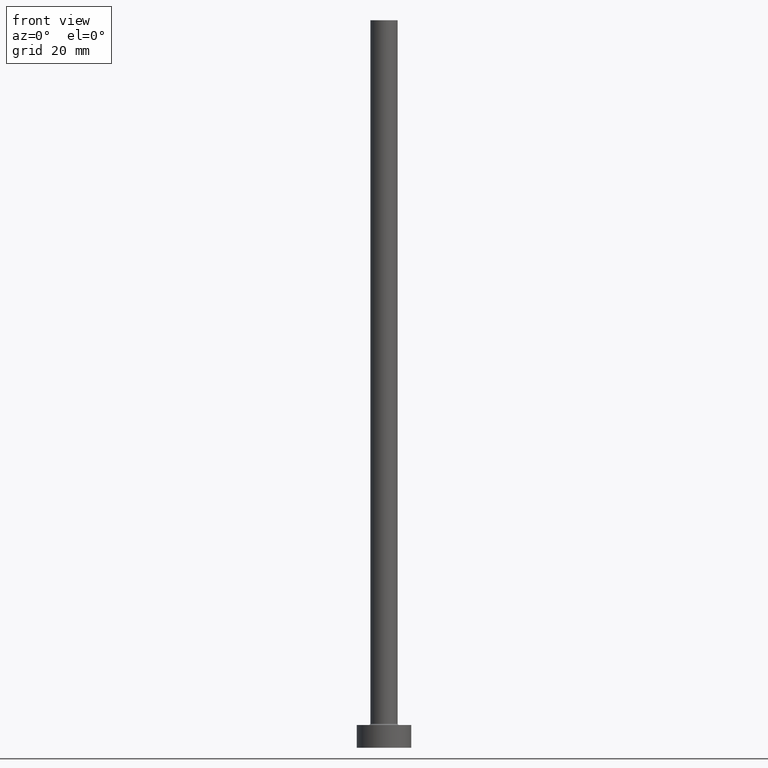
[diagram: clean part render]
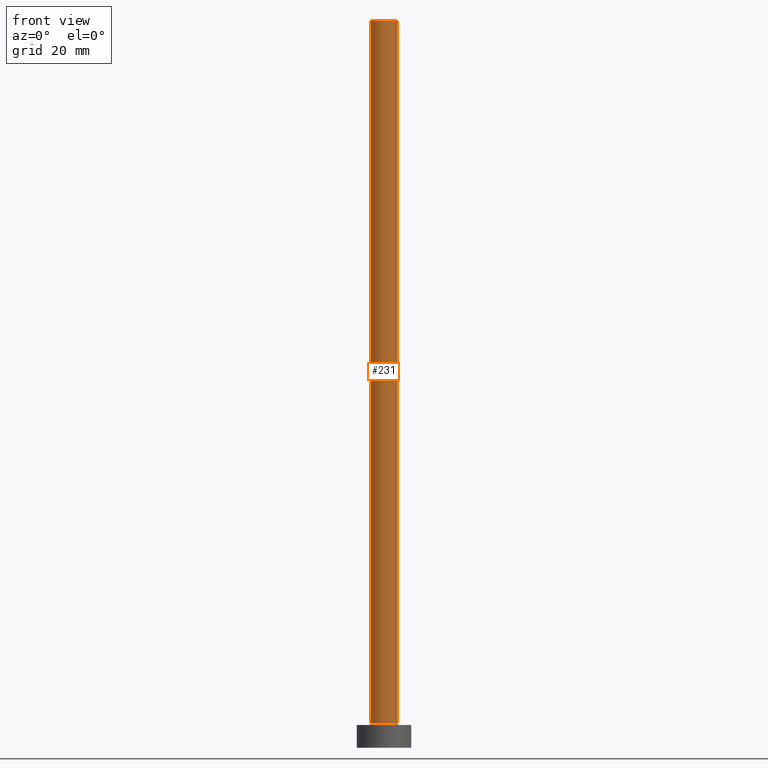
[diagram: same view with one face highlighted and labeled with its STEP entity id]
A machine part, front view. The second image highlights one B-rep face of the part: STEP entity #231.
In plain terms, the highlighted cylindrical surface (edge-blend (fillet) strip) has radius 3 mm, axis along (-0, -0, -1).
Its self-contained STEP definition (entity closure, byte-faithful):
#10 = ORIENTED_EDGE ( 'NONE', *, *, #313, .F. ) ;
#15 = VERTEX_POINT ( 'NONE', #100 ) ;
#36 = LINE ( 'NONE', #387, #154 ) ;
#41 = ORIENTED_EDGE ( 'NONE', *, *, #423, .T. ) ;
#74 = DIRECTION ( 'NONE',  ( 0.000000000000000000, 0.000000000000000000, 1.000000000000000000 ) ) ;
#77 = DIRECTION ( 'NONE',  ( -0.000000000000000000, -0.000000000000000000, -1.000000000000000000 ) ) ;
#79 = AXIS2_PLACEMENT_3D ( 'NONE', #173, #77, #355 ) ;
#81 = VERTEX_POINT ( 'NONE', #195 ) ;
#95 = AXIS2_PLACEMENT_3D ( 'NONE', #142, #74, #249 ) ;
#100 = CARTESIAN_POINT ( 'NONE',  ( 3.000000000000000444, 3.673940397442060361E-16, 160.0000000000000000 ) ) ;
#101 = CARTESIAN_POINT ( 'NONE',  ( -3.000000000000000444, 0.000000000000000000, 160.0000000000000000 ) ) ;
#103 = CIRCLE ( 'NONE', #95, 3.000000000000000444 ) ;
#122 = CIRCLE ( 'NONE', #377, 3.000000000000000444 ) ;
#142 = CARTESIAN_POINT ( 'NONE',  ( 0.000000000000000000, 0.000000000000000000, 5.299999999999998934 ) ) ;
#148 = DIRECTION ( 'NONE',  ( -0.000000000000000000, -0.000000000000000000, -1.000000000000000000 ) ) ;
#154 = VECTOR ( 'NONE', #317, 1000.000000000000000 ) ;
#158 = DIRECTION ( 'NONE',  ( 0.000000000000000000, 0.000000000000000000, 1.000000000000000000 ) ) ;
#173 = CARTESIAN_POINT ( 'NONE',  ( 0.000000000000000000, 0.000000000000000000, 160.0000000000000000 ) ) ;
#195 = CARTESIAN_POINT ( 'NONE',  ( -3.000000000000000444, 0.000000000000000000, 5.299999999999998934 ) ) ;
#218 = CARTESIAN_POINT ( 'NONE',  ( -3.000000000000000444, 0.000000000000000000, 160.0000000000000000 ) ) ;
#231 = ADVANCED_FACE ( 'NONE', ( #310 ), #449, .T. ) ;
#249 = DIRECTION ( 'NONE',  ( 1.000000000000000000, 0.000000000000000000, 0.000000000000000000 ) ) ;
#253 = CARTESIAN_POINT ( 'NONE',  ( 3.000000000000000444, 3.673940397442060361E-16, 5.299999999999998934 ) ) ;
#288 = CARTESIAN_POINT ( 'NONE',  ( 0.000000000000000000, 0.000000000000000000, 160.0000000000000000 ) ) ;
#310 = FACE_OUTER_BOUND ( 'NONE', #376, .T. ) ;
#313 = EDGE_CURVE ( 'NONE', #367, #15, #122, .T. ) ;
#317 = DIRECTION ( 'NONE',  ( -0.000000000000000000, -0.000000000000000000, -1.000000000000000000 ) ) ;
#331 = ORIENTED_EDGE ( 'NONE', *, *, #409, .F. ) ;
#355 = DIRECTION ( 'NONE',  ( -1.000000000000000000, 0.000000000000000000, 0.000000000000000000 ) ) ;
#367 = VERTEX_POINT ( 'NONE', #218 ) ;
#374 = EDGE_CURVE ( 'NONE', #81, #452, #103, .T. ) ;
#376 = EDGE_LOOP ( 'NONE', ( #331, #10, #41, #445 ) ) ;
#377 = AXIS2_PLACEMENT_3D ( 'NONE', #288, #158, #397 ) ;
#387 = CARTESIAN_POINT ( 'NONE',  ( 3.000000000000000444, 3.673940397442060361E-16, 160.0000000000000000 ) ) ;
#397 = DIRECTION ( 'NONE',  ( 1.000000000000000000, 0.000000000000000000, 0.000000000000000000 ) ) ;
#409 = EDGE_CURVE ( 'NONE', #15, #452, #36, .T. ) ;
#423 = EDGE_CURVE ( 'NONE', #367, #81, #427, .T. ) ;
#427 = LINE ( 'NONE', #101, #451 ) ;
#445 = ORIENTED_EDGE ( 'NONE', *, *, #374, .T. ) ;
#449 = CYLINDRICAL_SURFACE ( 'NONE', #79, 3.000000000000000444 ) ;
#451 = VECTOR ( 'NONE', #148, 1000.000000000000000 ) ;
#452 = VERTEX_POINT ( 'NONE', #253 ) ;